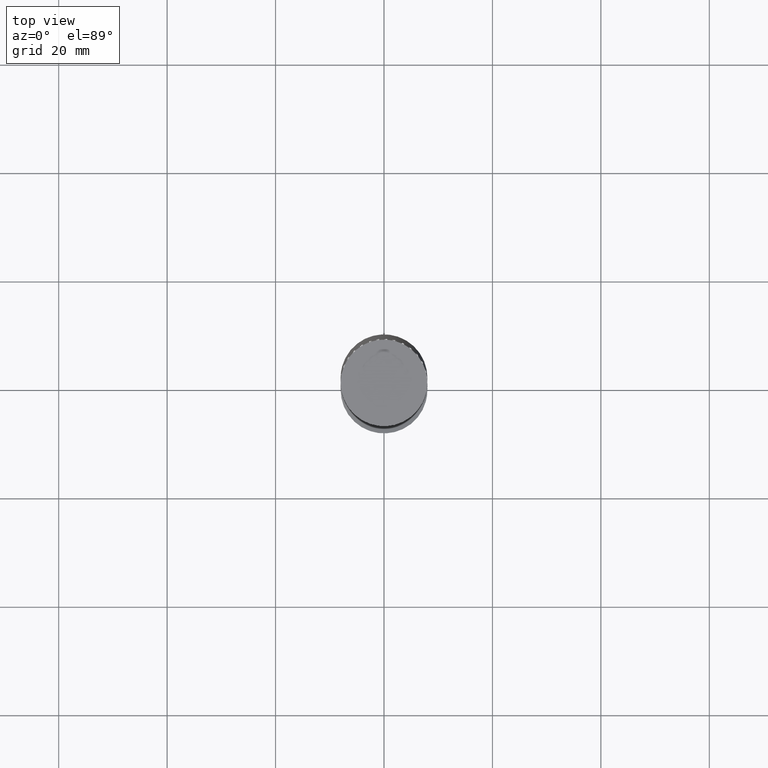
[diagram: clean part render]
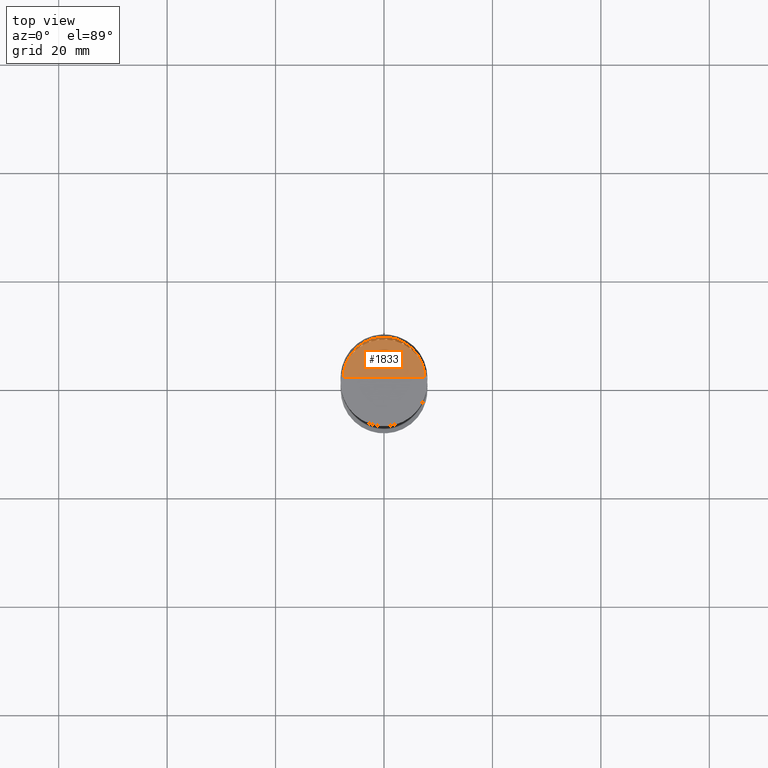
[diagram: same view with one face highlighted and labeled with its STEP entity id]
A machine part, top view. The second image highlights one B-rep face of the part: STEP entity #1833.
In plain terms, the highlighted face is a freeform B-spline surface patch.
Its self-contained STEP definition (entity closure, byte-faithful):
#1591=CARTESIAN_POINT('',(7.5,0.0,48.0));
#1592=CARTESIAN_POINT('',(7.5,7.5,48.0));
#1593=CARTESIAN_POINT('',(0.0,7.5,48.0));
#1594=CARTESIAN_POINT('',(-7.5,7.5,48.0));
#1595=CARTESIAN_POINT('',(-7.5,0.0,48.0));
#1596=CARTESIAN_POINT('',(0.0,0.0,48.0));
#1818=(
BOUNDED_SURFACE()
B_SPLINE_SURFACE(1,2,(
(#1591,#1592,#1593,#1594,#1595),
(#1596,#1596,#1596,#1596,#1596)
), .UNSPECIFIED.,.F.,.F.,.F.)
B_SPLINE_SURFACE_WITH_KNOTS((2,2),(3,2,3),(
0.0,1.0),(
0.0,0.5,1.0), .UNSPECIFIED.)
GEOMETRIC_REPRESENTATION_ITEM()
RATIONAL_B_SPLINE_SURFACE(((1.0,0.707106781187,1.0,0.707106781187,1.0),
(1.0,0.707106781187,1.0,0.707106781187,1.0)
))
REPRESENTATION_ITEM('')
SURFACE()
);
#1819=(
BOUNDED_CURVE()
B_SPLINE_CURVE(2,(#1595,#1594,#1593,#1592,#1591),.UNSPECIFIED.,.F.,.F.)
B_SPLINE_CURVE_WITH_KNOTS((3,2,3),
(0.0,0.5,1.0),.UNSPECIFIED.)
CURVE()
GEOMETRIC_REPRESENTATION_ITEM()
RATIONAL_B_SPLINE_CURVE((1.0,0.707106781187,1.0,0.707106781187,1.0))
REPRESENTATION_ITEM('')
);
#1820=(
BOUNDED_CURVE()
B_SPLINE_CURVE(1,(#1591,#1596),.UNSPECIFIED.,.F.,.F.)
B_SPLINE_CURVE_WITH_KNOTS((2,2),
(0.0,1.0),.UNSPECIFIED.)
CURVE()
GEOMETRIC_REPRESENTATION_ITEM()
RATIONAL_B_SPLINE_CURVE((1.0,1.0))
REPRESENTATION_ITEM('')
);
#1821=(
BOUNDED_CURVE()
B_SPLINE_CURVE(1,(#1596,#1595),.UNSPECIFIED.,.F.,.F.)
B_SPLINE_CURVE_WITH_KNOTS((2,2),
(0.0,1.0),.UNSPECIFIED.)
CURVE()
GEOMETRIC_REPRESENTATION_ITEM()
RATIONAL_B_SPLINE_CURVE((1.0,1.0))
REPRESENTATION_ITEM('')
);
#1822=VERTEX_POINT('',#1591);
#1823=VERTEX_POINT('',#1595);
#1824=VERTEX_POINT('',#1596);
#1825=EDGE_CURVE('',#1823,#1822,#1819,.T.);
#1826=EDGE_CURVE('',#1822,#1824,#1820,.T.);
#1827=EDGE_CURVE('',#1824,#1823,#1821,.T.);
#1828=ORIENTED_EDGE('',*,*,#1825,.T.);
#1829=ORIENTED_EDGE('',*,*,#1826,.T.);
#1830=ORIENTED_EDGE('',*,*,#1827,.T.);
#1831=EDGE_LOOP('',(#1828,#1829,#1830));
#1832=FACE_OUTER_BOUND('',#1831,.T.);
#1833=ADVANCED_FACE('',(#1832),#1818,.T.);